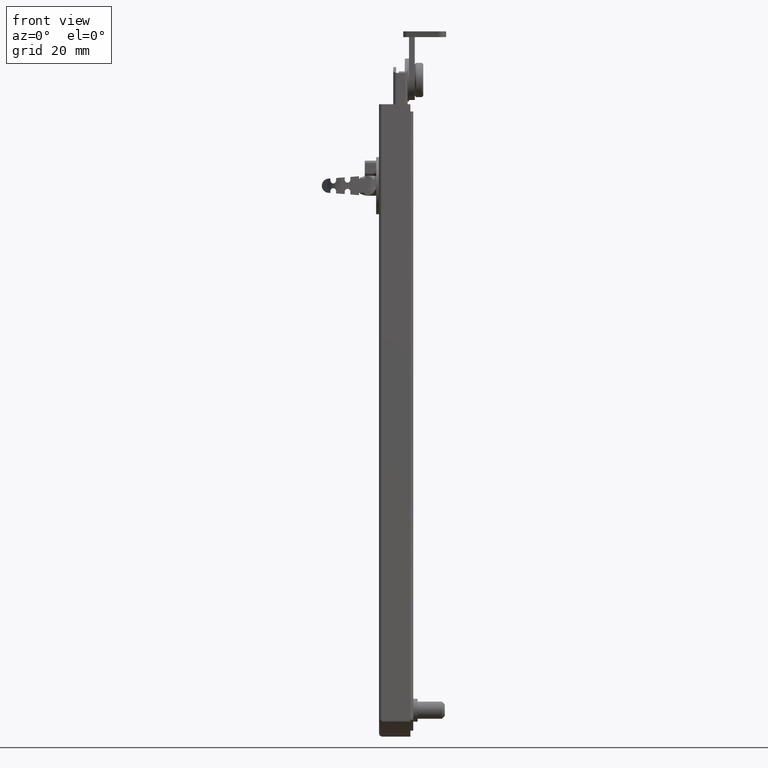
[diagram: clean part render]
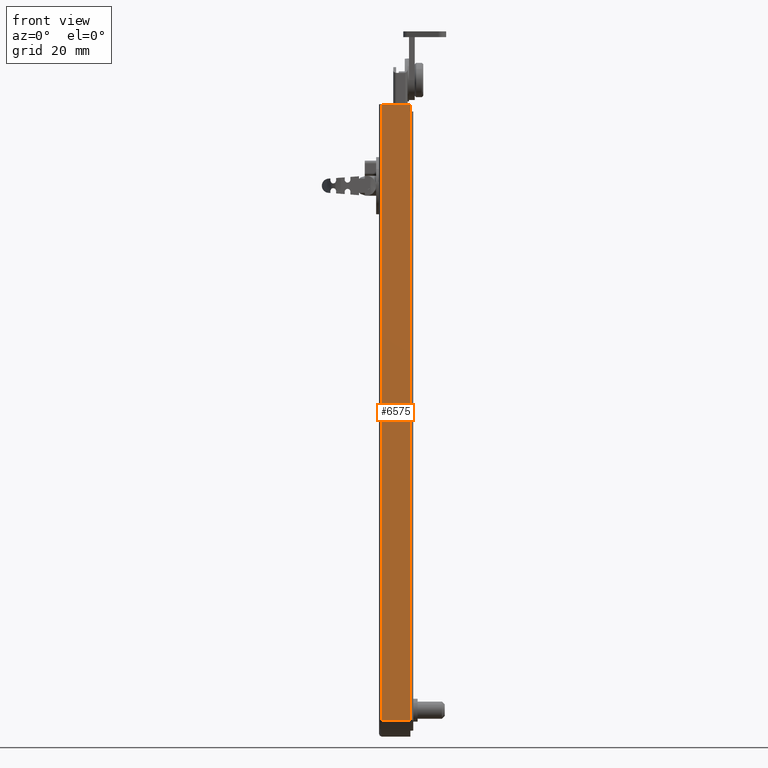
[diagram: same view with one face highlighted and labeled with its STEP entity id]
A machine part, front view. The second image highlights one B-rep face of the part: STEP entity #6575.
In plain terms, the highlighted face is a freeform B-spline surface patch.
Its self-contained STEP definition (entity closure, byte-faithful):
#5511=CARTESIAN_POINT('',(11.0,-13.500000000000000,-3.552740021253995));
#5512=VERTEX_POINT('',#5511);
#5523=CARTESIAN_POINT('',(1.0,-13.500000000000000,-3.552740021253995));
#5524=VERTEX_POINT('',#5523);
#5525=CARTESIAN_POINT('',(1.0,-13.500000000000000,-3.552740021253995));
#5526=CARTESIAN_POINT('',(11.0,-13.500000000000000,-3.552740021253995));
#5527=QUASI_UNIFORM_CURVE('',1,(#5525,#5526),.UNSPECIFIED.,.F.,.U.);
#5528=EDGE_CURVE('',#5524,#5512,#5527,.T.);
#5614=CARTESIAN_POINT('',(1.0,-13.500000000000000,211.999985000000010));
#5615=VERTEX_POINT('',#5614);
#5632=CARTESIAN_POINT('',(1.0,-13.500000000000000,211.999985000000010));
#5633=CARTESIAN_POINT('',(1.0,-13.500000000000000,-3.552740021253995));
#5634=QUASI_UNIFORM_CURVE('',1,(#5632,#5633),.UNSPECIFIED.,.F.,.U.);
#5635=EDGE_CURVE('',#5615,#5524,#5634,.T.);
#6514=CARTESIAN_POINT('',(11.000000000000121,-13.500000000000000,211.999985000000010));
#6515=VERTEX_POINT('',#6514);
#6516=CARTESIAN_POINT('',(11.0,-13.500000000000000,-3.552740021253995));
#6517=CARTESIAN_POINT('',(11.000000000000121,-13.500000000000000,211.999985000000010));
#6518=QUASI_UNIFORM_CURVE('',1,(#6516,#6517),.UNSPECIFIED.,.F.,.U.);
#6519=EDGE_CURVE('',#5512,#6515,#6518,.T.);
#6560=CARTESIAN_POINT('',(0.500500019381934,-13.500000000000000,222.766843197028690));
#6561=CARTESIAN_POINT('',(0.500500019381934,-13.500000000000000,-14.319603999857250));
#6562=CARTESIAN_POINT('',(11.499500248839089,-13.500000000000000,222.766843197028690));
#6563=CARTESIAN_POINT('',(11.499500248839089,-13.500000000000000,-14.319603999857250));
#6564=B_SPLINE_SURFACE_WITH_KNOTS('',1,1,((#6560,#6562),(#6561,#6563)),.UNSPECIFIED.,.F.,.F.,.U.,(2,2),(2,2),(0.0,237.086447196886010),(0.0,10.999000229457151),.UNSPECIFIED.);
#6565=ORIENTED_EDGE('',*,*,#5635,.T.);
#6566=ORIENTED_EDGE('',*,*,#5528,.T.);
#6567=ORIENTED_EDGE('',*,*,#6519,.T.);
#6568=CARTESIAN_POINT('',(11.000000000000121,-13.500000000000000,211.999985000000010));
#6569=CARTESIAN_POINT('',(1.0,-13.500000000000000,211.999985000000010));
#6570=QUASI_UNIFORM_CURVE('',1,(#6568,#6569),.UNSPECIFIED.,.F.,.U.);
#6571=EDGE_CURVE('',#6515,#5615,#6570,.T.);
#6572=ORIENTED_EDGE('',*,*,#6571,.T.);
#6573=EDGE_LOOP('',(#6565,#6566,#6567,#6572));
#6574=FACE_OUTER_BOUND('',#6573,.T.);
#6575=ADVANCED_FACE('',(#6574),#6564,.T.);